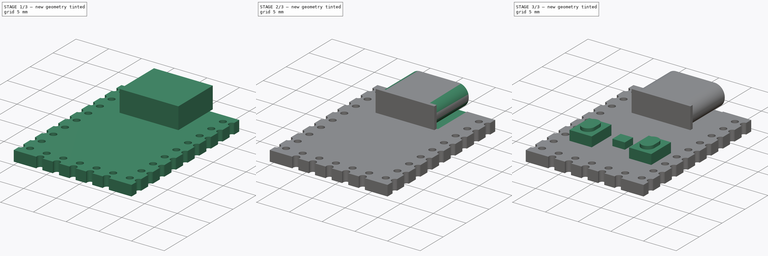
[diagram: build sequence overview — one tinted view per stage of 3, left to right]
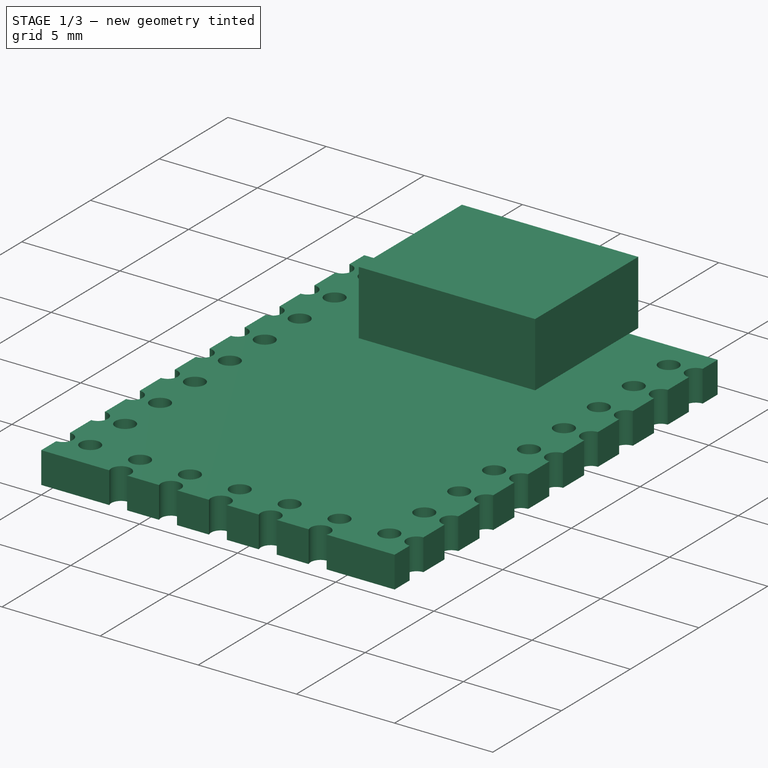
[diagram: stage 1 of 3 — iso view after this stage's code; geometry added in this stage tinted green]
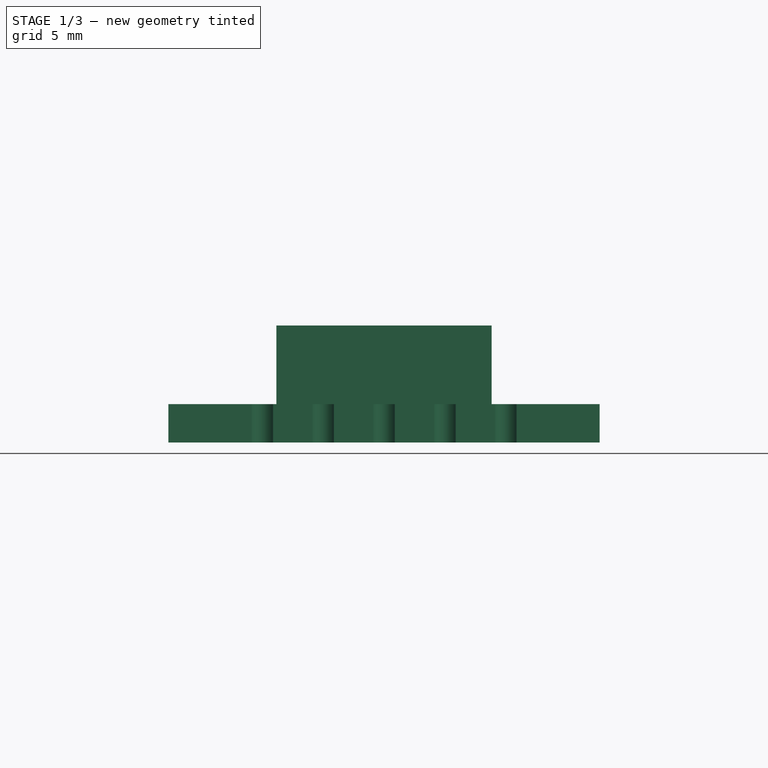
[diagram: stage 1 of 3 — front view after this stage's code; geometry added in this stage tinted green]
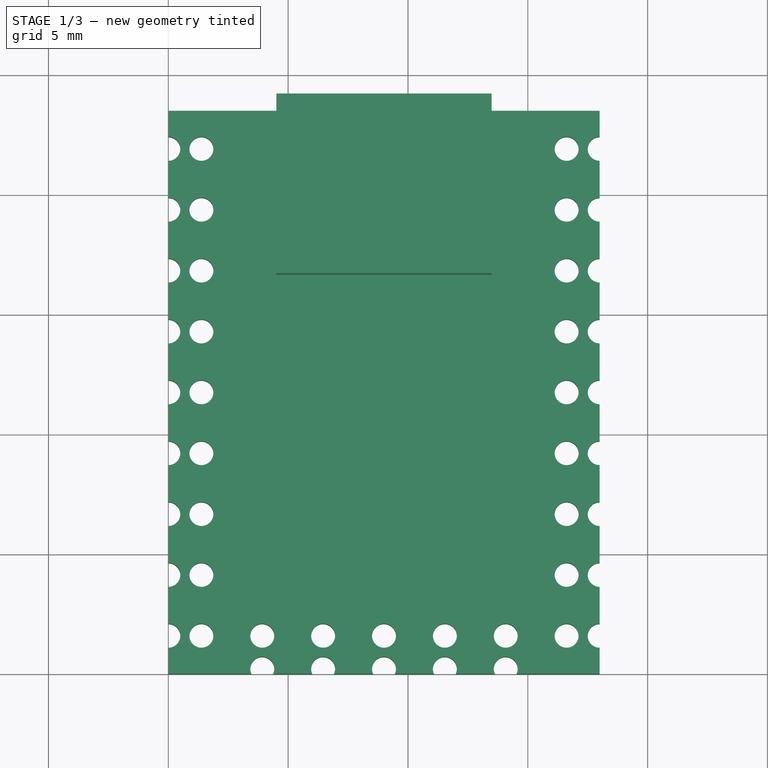
[diagram: stage 1 of 3 — top view after this stage's code; geometry added in this stage tinted green]
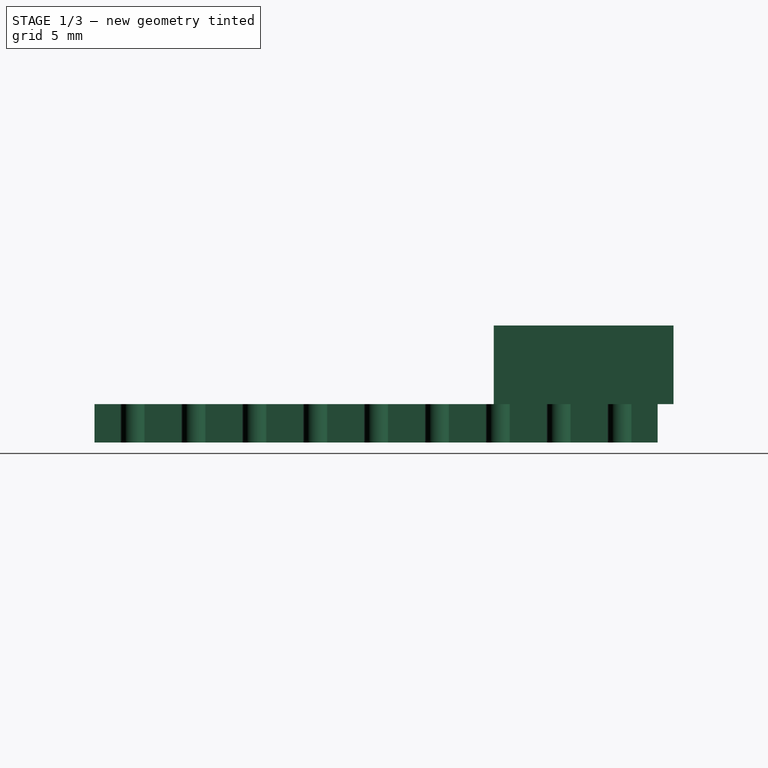
[diagram: stage 1 of 3 — right view after this stage's code; geometry added in this stage tinted green]
FCSTD DOCUMENT  (FreeCAD 1.0RUnknown)
Label: RP2350-Zero_mini
License: All rights reserved
objects: Sketcher::SketchObject×8, PartDesign::Pad×5, PartDesign::Pocket×3, Image::ImagePlane×1, PartDesign::Body×1
note: 41 computed .brp shape members not serialized (recipe doc carries the construction recipe); baked Part::Feature solids carry a one-line shape summary decoded from their .brp

FEATURE [Sketcher::SketchObject] Sketch
  ArcFitTolerance = 1e-06
  AttachmentSupport = -> [XY_Plane]
  FullyConstrained = true
  MakeInternals = false
  MapMode = 5
  sketch-geometry (55):
    g0: LineSegment StartX=0 StartY=0 StartZ=0 EndX=18 EndY=0 EndZ=0
    g1: LineSegment StartX=18 StartY=0 StartZ=0 EndX=18 EndY=23.5 EndZ=0
    g2: LineSegment StartX=18 StartY=23.5 StartZ=0 EndX=0 EndY=23.5 EndZ=0
    g3: LineSegment StartX=0 StartY=23.5 StartZ=0 EndX=0 EndY=0 EndZ=0
    g4: Circle CenterX=1.38 CenterY=21.91 CenterZ=0 NormalX=0 NormalY=0 NormalZ=1 AngleXU=0 Radius=0.5
    g5: Circle [constr] CenterX=0 CenterY=21.91 CenterZ=0 NormalX=0 NormalY=0 NormalZ=1 AngleXU=0 Radius=0.5
    g6: Circle CenterX=1.38 CenterY=19.37 CenterZ=0 NormalX=0 NormalY=0 NormalZ=1 AngleXU=0 Radius=0.5
    g7: Circle [constr] CenterX=0 CenterY=19.37 CenterZ=0 NormalX=0 NormalY=0 NormalZ=1 AngleXU=0 Radius=0.5
    g8: Circle CenterX=1.38 CenterY=16.83 CenterZ=0 NormalX=0 NormalY=0 NormalZ=1 AngleXU=0 Radius=0.5
    g9: Circle [constr] CenterX=0 CenterY=16.83 CenterZ=0 NormalX=0 NormalY=0 NormalZ=1 AngleXU=0 Radius=0.5
    g10: Circle CenterX=1.38 CenterY=14.29 CenterZ=0 NormalX=0 NormalY=0 NormalZ=1 AngleXU=0 Radius=0.5
    g11: Circle [constr] CenterX=0 CenterY=14.29 CenterZ=0 NormalX=0 NormalY=0 NormalZ=1 AngleXU=0 Radius=0.5
    g12: Circle CenterX=1.38 CenterY=11.75 CenterZ=0 NormalX=0 NormalY=0 NormalZ=1 AngleXU=0 Radius=0.5
    g13: Circle [constr] CenterX=0 CenterY=11.75 CenterZ=0 NormalX=0 NormalY=0 NormalZ=1 AngleXU=0 Radius=0.5
    g14: Circle CenterX=1.38 CenterY=9.21 CenterZ=0 NormalX=0 NormalY=0 NormalZ=1 AngleXU=0 Radius=0.5
    g15: Circle [constr] CenterX=0 CenterY=9.21 CenterZ=0 NormalX=0 NormalY=0 NormalZ=1 AngleXU=0 Radius=0.5
    g16: Circle CenterX=1.38 CenterY=6.67 CenterZ=0 NormalX=0 NormalY=0 NormalZ=1 AngleXU=0 Radius=0.5
    g17: Circle [constr] CenterX=0 CenterY=6.67 CenterZ=0 NormalX=0 NormalY=0 NormalZ=1 AngleXU=0 Radius=0.5
    g18: Circle CenterX=1.38 CenterY=4.13 CenterZ=0 NormalX=0 NormalY=0 NormalZ=1 AngleXU=0 Radius=0.5
    g19: Circle [constr] CenterX=0 CenterY=4.13 CenterZ=0 NormalX=0 NormalY=0 NormalZ=1 AngleXU=0 Radius=0.5
    g20: Circle CenterX=1.38 CenterY=1.59 CenterZ=0 NormalX=0 NormalY=0 NormalZ=1 AngleXU=0 Radius=0.5
    g21: Circle [constr] CenterX=0 CenterY=1.59 CenterZ=0 NormalX=0 NormalY=0 NormalZ=1 AngleXU=0 Radius=0.5
    g22: LineSegment [constr] StartX=4.67 StartY=24.33 StartZ=0 EndX=4.67 EndY=16.83 EndZ=0
    g23: LineSegment [constr] StartX=4.67 StartY=16.83 StartZ=0 EndX=13.33 EndY=16.83 EndZ=0
    g24: LineSegment [constr] StartX=13.33 StartY=16.83 StartZ=0 EndX=13.33 EndY=24.33 EndZ=0
    g25: LineSegment [constr] StartX=13.33 StartY=24.33 StartZ=0 EndX=4.67 EndY=24.33 EndZ=0
    g26: Circle [constr] CenterX=18 CenterY=21.91 CenterZ=0 NormalX=0 NormalY=0 NormalZ=1 AngleXU=0 Radius=0.5
    g27: Circle CenterX=16.62 CenterY=21.91 CenterZ=0 NormalX=0 NormalY=0 NormalZ=1 AngleXU=0 Radius=0.5
    g28: Circle [constr] CenterX=18 CenterY=19.37 CenterZ=0 NormalX=0 NormalY=0 NormalZ=1 AngleXU=0 Radius=0.5
    g29: Circle CenterX=16.62 CenterY=19.37 CenterZ=0 NormalX=0 NormalY=0 NormalZ=1 AngleXU=0 Radius=0.5
    g30: Circle [constr] CenterX=18 CenterY=16.83 CenterZ=0 NormalX=0 NormalY=0 NormalZ=1 AngleXU=0 Radius=0.5
    g31: Circle CenterX=16.62 CenterY=16.83 CenterZ=0 NormalX=0 NormalY=0 NormalZ=1 AngleXU=0 Radius=0.5
    g32: Circle [constr] CenterX=18 CenterY=14.29 CenterZ=0 NormalX=0 NormalY=0 NormalZ=1 AngleXU=0 Radius=0.5
    g33: Circle CenterX=16.62 CenterY=14.29 CenterZ=0 NormalX=0 NormalY=0 NormalZ=1 AngleXU=0 Radius=0.5
    g34: Circle [constr] CenterX=18 CenterY=11.75 CenterZ=0 NormalX=0 NormalY=0 NormalZ=1 AngleXU=0 Radius=0.5
    g35: Circle CenterX=16.62 CenterY=11.75 CenterZ=0 NormalX=0 NormalY=0 NormalZ=1 AngleXU=0 Radius=0.5
    g36: Circle [constr] CenterX=18 CenterY=9.21 CenterZ=0 NormalX=0 NormalY=0 NormalZ=1 AngleXU=0 Radius=0.5
    g37: Circle CenterX=16.62 CenterY=9.21 CenterZ=0 NormalX=0 NormalY=0 NormalZ=1 AngleXU=0 Radius=0.5
    g38: Circle [constr] CenterX=18 CenterY=6.67 CenterZ=0 NormalX=0 NormalY=0 NormalZ=1 AngleXU=0 Radius=0.5
    g39: Circle CenterX=16.62 CenterY=6.67 CenterZ=0 NormalX=0 NormalY=0 NormalZ=1 AngleXU=0 Radius=0.5
    g40: Circle [constr] CenterX=18 CenterY=4.13 CenterZ=0 NormalX=0 NormalY=0 NormalZ=1 AngleXU=0 Radius=0.5
    g41: Circle CenterX=16.62 CenterY=4.13 CenterZ=0 NormalX=0 NormalY=0 NormalZ=1 AngleXU=0 Radius=0.5
    g42: Circle [constr] CenterX=18 CenterY=1.59 CenterZ=0 NormalX=0 NormalY=0 NormalZ=1 AngleXU=0 Radius=0.5
    g43: Circle CenterX=16.62 CenterY=1.59 CenterZ=0 NormalX=0 NormalY=0 NormalZ=1 AngleXU=0 Radius=0.5
    g44: LineSegment [constr] StartX=16.62 StartY=23.5 StartZ=0 EndX=16.62 EndY=0 EndZ=0
    g45: Circle CenterX=14.08 CenterY=1.59 CenterZ=0 NormalX=0 NormalY=0 NormalZ=1 AngleXU=0 Radius=0.5
    g46: Circle [constr] CenterX=14.08 CenterY=0.21 CenterZ=0 NormalX=0 NormalY=0 NormalZ=1 AngleXU=0 Radius=0.5
    g47: Circle CenterX=11.54 CenterY=1.59 CenterZ=0 NormalX=0 NormalY=0 NormalZ=1 AngleXU=0 Radius=0.5
    g48: Circle [constr] CenterX=11.54 CenterY=0.21 CenterZ=0 NormalX=0 NormalY=0 NormalZ=1 AngleXU=0 Radius=0.5
    g49: Circle CenterX=9 CenterY=1.59 CenterZ=0 NormalX=0 NormalY=0 NormalZ=1 AngleXU=0 Radius=0.5
    g50: Circle [constr] CenterX=9 CenterY=0.21 CenterZ=0 NormalX=0 NormalY=0 NormalZ=1 AngleXU=0 Radius=0.5
    g51: Circle CenterX=6.46 CenterY=1.59 CenterZ=0 NormalX=0 NormalY=0 NormalZ=1 AngleXU=0 Radius=0.5
    g52: Circle [constr] CenterX=6.46 CenterY=0.21 CenterZ=0 NormalX=0 NormalY=0 NormalZ=1 AngleXU=0 Radius=0.5
    g53: Circle CenterX=3.92 CenterY=1.59 CenterZ=0 NormalX=0 NormalY=0 NormalZ=1 AngleXU=0 Radius=0.5
    g54: Circle [constr] CenterX=3.92 CenterY=0.21 CenterZ=0 NormalX=0 NormalY=0 NormalZ=1 AngleXU=0 Radius=0.5
  constraints (165):
    c: Coincident(g0,g1)
    c: Coincident(g1,g2)
    c: Coincident(g2,g3)
    c: Coincident(g3,g0)
    c: Horizontal(g0)
    c: Horizontal(g2)
    c: Vertical(g1)
    c: Vertical(g3)
    c: Distance(g1,g3) = 18
    c: Distance(g0,g2) = 23.5
    c: Coincident(g0,g-1)
    c: DistanceY(g4,g2) = 1.59
    c: DistanceX(g2,g4) = 1.38
    c: Diameter(g4) = 1
    c: PointOnObject(g5,g3)
    c: Equal(g4,g5)
    c: Horizontal(g5,g4)
    c: Equal(g4,g6)
    c: Equal(g4,g8)
    c: Equal(g4,g10)
    c: Equal(g4,g12)
    c: Equal(g4,g14)
    c: Equal(g4,g16)
    c: Equal(g4,g18)
    c: Equal(g4,g20)
    c: Equal(g6,g7)
    c: Equal(g8,g9)
    c: Equal(g10,g11)
    c: Equal(g12,g13)
    c: Equal(g14,g15)
    c: Equal(g16,g17)
    c: Equal(g18,g19)
    c: Equal(g20,g21)
    c: Horizontal(g7,g6)
    c: Horizontal(g9,g8)
    c: Horizontal(g11,g10)
    c: Horizontal(g13,g12)
    c: Horizontal(g15,g14)
    c: Horizontal(g17,g16)
    c: Horizontal(g19,g18)
    c: Horizontal(g21,g20)
    c: Vertical(g6,g4)
    c: Vertical(g8,g6)
    c: Vertical(g10,g8)
    c: Vertical(g12,g10)
    c: Vertical(g14,g12)
    c: Vertical(g16,g14)
    c: Vertical(g18,g16)
    c: Vertical(g20,g18)
    c: Vertical(g9,g11)
    c: Vertical(g11,g13)
    c: Vertical(g13,g15)
    c: Vertical(g15,g17)
    c: Vertical(g19,g17)
    c: Vertical(g19,g21)
    c: Vertical(g7,g5)
    c: DistanceY(g7,g5) = 2.54
    c: DistanceY(g9,g7) = 2.54
    c: DistanceY(g11,g9) = 2.54
    c: DistanceY(g13,g11) = 2.54
    c: DistanceY(g15,g13) = 2.54
    c: DistanceY(g17,g15) = 2.54
    c: DistanceY(g19,g17) = 2.54
    c: DistanceY(g21,g19) = 2.54
    c: Vertical(g9,g7)
    c: Coincident(g22,g23)
    c: Coincident(g23,g24)
    c: Coincident(g24,g25)
    c: Coincident(g25,g22)
    c: Vertical(g22)
    c: Vertical(g24)
    c: Horizontal(g23)
    c: Horizontal(g25)
    c: DistanceX(g24,g1) = 4.67
    c: DistanceX(g2,g22) = 4.67
    c: Horizontal(g8,g22)
    c: DistanceY(g22,g22) = 7.5
    c: Vertical(g44)
    c: Diameter(g26) = 1
    c: PointOnObject(g27,g44)
    c: Equal(g26,g27)
    c: Horizontal(g27,g26)
    c: Equal(g26,g28)
    c: Equal(g26,g30)
    c: Equal(g26,g32)
    c: Equal(g26,g34)
    c: Equal(g26,g36)
    c: Equal(g26,g38)
    c: Equal(g26,g40)
    c: Equal(g26,g42)
    c: Equal(g28,g29)
    c: Equal(g30,g31)
    c: Equal(g32,g33)
    c: Equal(g34,g35)
    c: Equal(g36,g37)
    c: Equal(g38,g39)
    c: Equal(g40,g41)
    c: Equal(g42,g43)
    c: Horizontal(g29,g28)
    c: Horizontal(g31,g30)
    c: Horizontal(g33,g32)
    c: Horizontal(g35,g34)
    c: Horizontal(g37,g36)
    c: Horizontal(g39,g38)
    c: Horizontal(g41,g40)
    c: Horizontal(g43,g42)
    c: Vertical(g28,g26)
    c: Vertical(g30,g28)
    c: Vertical(g32,g30)
    c: Vertical(g34,g32)
    c: Vertical(g36,g34)
    c: Vertical(g38,g36)
    c: Vertical(g40,g38)
    c: Vertical(g42,g40)
    c: Vertical(g31,g33)
    c: Vertical(g33,g35)
    c: Vertical(g35,g37)
    c: Vertical(g37,g39)
    c: Vertical(g41,g39)
    c: Vertical(g41,g43)
    c: Vertical(g29,g27)
    c: DistanceY(g29,g27) = 2.54
    c: DistanceY(g31,g29) = 2.54
    c: DistanceY(g33,g31) = 2.54
    c: DistanceY(g35,g33) = 2.54
    c: DistanceY(g37,g35) = 2.54
    c: DistanceY(g39,g37) = 2.54
    c: DistanceY(g41,g39) = 2.54
    c: DistanceY(g43,g41) = 2.54
    c: Vertical(g31,g29)
    c: Horizontal(g30,g22)
    c: PointOnObject(g26,g1)
    c: DistanceX(g27,g26) = 1.38
    c: PointOnObject(g44,g2)
    c: PointOnObject(g44,g0)
    c: Equal(g45,g20)
    c: DistanceX(g45,g0) = 3.92
    c: Horizontal(g45,g43)
    c: Equal(g46,g45)
    c: Vertical(g45,g46)
    c: DistanceY(g46,g45) = 1.38
    c: Horizontal(g47,g43)
    c: Horizontal(g49,g43)
    c: Horizontal(g51,g43)
    c: Horizontal(g53,g43)
    c: Equal(g48,g47)
    c: Equal(g50,g49)
    c: Equal(g52,g51)
    c: Equal(g54,g53)
    c: Vertical(g47,g48)
    c: Vertical(g49,g50)
    c: Vertical(g51,g52)
    c: Vertical(g53,g54)
    c: DistanceY(g48,g47) = 1.38
    c: DistanceY(g50,g49) = 1.38
    c: DistanceY(g52,g51) = 1.38
    c: DistanceY(g54,g53) = 1.38
    c: Equal(g45,g47)
    c: Equal(g47,g49)
    c: Equal(g49,g51)
    c: Equal(g51,g53)
    c: DistanceX(g48,g46) = 2.54
    c: DistanceX(g50,g48) = 2.54
    c: DistanceX(g52,g50) = 2.54
    c: DistanceX(g54,g52) = 2.54
FEATURE [Image::ImagePlane] Screenshot_20260202_135313
  Placement = pos=(12,11,0) rot=(0,0,1;0rad)
  XSize = 40.3515
  YSize = 38.0782
FEATURE [PartDesign::Pad] Pad
  Direction = (0,0,1)
  Length = 1.6
  Length2 = 10
  Profile = -> Sketch
  ReferenceAxis = -> Sketch [N_Axis]
  Refine = true
  Suppressed = false
  Type = 0
FEATURE [Sketcher::SketchObject] Sketch001
  ArcFitTolerance = 1e-06
  AttachmentSupport = -> [Pad]
  ExternalGeometry = -> [Pad]
  FullyConstrained = true
  MakeInternals = false
  MapMode = 5
  Placement = pos=(0,0,1.6) rot=(0,0,1;0rad)
  sketch-geometry (23):
    g0: Circle CenterX=0 CenterY=21.91 CenterZ=0 NormalX=0 NormalY=0 NormalZ=1 AngleXU=0 Radius=0.5
    g1: Circle CenterX=0 CenterY=19.37 CenterZ=0 NormalX=0 NormalY=0 NormalZ=1 AngleXU=0 Radius=0.5
    g2: Circle CenterX=0 CenterY=16.83 CenterZ=0 NormalX=0 NormalY=0 NormalZ=1 AngleXU=0 Radius=0.5
    g3: Circle CenterX=0 CenterY=14.29 CenterZ=0 NormalX=0 NormalY=0 NormalZ=1 AngleXU=0 Radius=0.5
    g4: Circle CenterX=0 CenterY=11.75 CenterZ=0 NormalX=0 NormalY=0 NormalZ=1 AngleXU=0 Radius=0.5
    g5: Circle CenterX=0 CenterY=9.21 CenterZ=0 NormalX=0 NormalY=0 NormalZ=1 AngleXU=0 Radius=0.5
    g6: Circle CenterX=0 CenterY=6.67 CenterZ=0 NormalX=0 NormalY=0 NormalZ=1 AngleXU=0 Radius=0.5
    g7: Circle CenterX=0 CenterY=4.13 CenterZ=0 NormalX=0 NormalY=0 NormalZ=1 AngleXU=0 Radius=0.5
    g8: Circle CenterX=0 CenterY=1.59 CenterZ=0 NormalX=0 NormalY=0 NormalZ=1 AngleXU=0 Radius=0.5
    g9: Circle CenterX=18 CenterY=21.91 CenterZ=0 NormalX=0 NormalY=0 NormalZ=1 AngleXU=0 Radius=0.5
    g10: Circle CenterX=18 CenterY=19.37 CenterZ=0 NormalX=0 NormalY=0 NormalZ=1 AngleXU=0 Radius=0.5
    g11: Circle CenterX=18 CenterY=16.83 CenterZ=0 NormalX=0 NormalY=0 NormalZ=1 AngleXU=0 Radius=0.5
    g12: Circle CenterX=18 CenterY=14.29 CenterZ=0 NormalX=0 NormalY=0 NormalZ=1 AngleXU=0 Radius=0.5
    g13: Circle CenterX=18 CenterY=11.75 CenterZ=0 NormalX=0 NormalY=0 NormalZ=1 AngleXU=0 Radius=0.5
    g14: Circle CenterX=18 CenterY=9.21 CenterZ=0 NormalX=0 NormalY=0 NormalZ=1 AngleXU=0 Radius=0.5
    g15: Circle CenterX=18 CenterY=6.67 CenterZ=0 NormalX=0 NormalY=0 NormalZ=1 AngleXU=0 Radius=0.5
    g16: Circle CenterX=18 CenterY=4.13 CenterZ=0 NormalX=0 NormalY=0 NormalZ=1 AngleXU=0 Radius=0.5
    g17: Circle CenterX=18 CenterY=1.59 CenterZ=0 NormalX=0 NormalY=0 NormalZ=1 AngleXU=0 Radius=0.5
    g18: Circle CenterX=3.92 CenterY=0.21 CenterZ=0 NormalX=0 NormalY=0 NormalZ=1 AngleXU=0 Radius=0.5
    g19: Circle CenterX=6.46 CenterY=0.21 CenterZ=0 NormalX=0 NormalY=0 NormalZ=1 AngleXU=0 Radius=0.5
    g20: Circle CenterX=9 CenterY=0.21 CenterZ=0 NormalX=0 NormalY=0 NormalZ=1 AngleXU=0 Radius=0.5
    g21: Circle CenterX=11.54 CenterY=0.21 CenterZ=0 NormalX=0 NormalY=0 NormalZ=1 AngleXU=0 Radius=0.5
    g22: Circle CenterX=14.08 CenterY=0.21 CenterZ=0 NormalX=0 NormalY=0 NormalZ=1 AngleXU=0 Radius=0.5
  constraints (69):
    c: PointOnObject(g0,g-2)
    c: Equal(g-3,g0)
    c: Horizontal(g0,g-3)
    c: PointOnObject(g1,g-2)
    c: PointOnObject(g2,g-2)
    c: PointOnObject(g3,g-2)
    c: PointOnObject(g4,g-2)
    c: PointOnObject(g5,g-2)
    c: PointOnObject(g6,g-2)
    c: PointOnObject(g7,g-2)
    c: PointOnObject(g8,g-2)
    c: Equal(g0,g1)
    c: Equal(g1,g2)
    c: Equal(g2,g3)
    c: Equal(g3,g4)
    c: Equal(g4,g5)
    c: Equal(g5,g6)
    c: Equal(g6,g7)
    c: Equal(g7,g8)
    c: Horizontal(g1,g-4)
    c: Horizontal(g2,g-5)
    c: Horizontal(g-6,g3)
    c: Horizontal(g4,g-7)
    c: Horizontal(g5,g-8)
    c: Horizontal(g6,g-10)
    c: Horizontal(g7,g-9)
    c: Horizontal(g8,g-11)
    c: Horizontal(g9,g-3)
    c: Equal(g9,g10)
    c: Equal(g10,g11)
    c: Equal(g11,g12)
    c: Equal(g12,g13)
    c: Equal(g13,g14)
    c: Equal(g14,g15)
    c: Equal(g15,g16)
    c: Equal(g16,g17)
    c: Horizontal(g10,g-4)
    c: Horizontal(g11,g-5)
    c: Horizontal(g13,g-7)
    c: Horizontal(g14,g-8)
    c: Horizontal(g15,g-10)
    c: Horizontal(g16,g-9)
    c: Horizontal(g17,g-11)
    c: Equal(g9,g0)
    c: PointOnObject(g9,g-12)
    c: Vertical(g9,g10)
    c: Vertical(g10,g11)
    c: Vertical(g11,g12)
    c: Vertical(g12,g13)
    c: Vertical(g13,g14)
    c: Vertical(g14,g15)
    c: Vertical(g15,g16)
    c: Vertical(g16,g17)
    c: Horizontal(g12,g-6)
    c: DistanceY(g18,g-13) = 1.38
    c: Equal(g-13,g18)
    c: Vertical(g18,g-13)
    c: Equal(g18,g19)
    c: Equal(g19,g20)
    c: Equal(g20,g21)
    c: Equal(g21,g22)
    c: Vertical(g-14,g19)
    c: Vertical(g-15,g20)
    c: Vertical(g-16,g21)
    c: Vertical(g-17,g22)
    c: Horizontal(g18,g19)
    c: Horizontal(g19,g20)
    c: Horizontal(g20,g21)
    c: Horizontal(g21,g22)
FEATURE [PartDesign::Pocket] Pocket
  BaseFeature = -> Pad
  Direction = (0,0,-1)
  Length = 5
  Length2 = 5
  Profile = -> Sketch001
  ReferenceAxis = -> Sketch001 [N_Axis]
  Refine = true
  Suppressed = false
  Type = 0
FEATURE [Sketcher::SketchObject] Sketch002
  ArcFitTolerance = 1e-06
  AttachmentSupport = -> [Pocket]
  ExternalGeometry = -> [Pocket]
  FullyConstrained = true
  MakeInternals = false
  MapMode = 5
  Placement = pos=(0,0,1.6) rot=(0,0,1;0rad)
  sketch-geometry (6):
    g0: LineSegment StartX=4.51 StartY=24.16 StartZ=0 EndX=4.51 EndY=16.66 EndZ=0
    g1: LineSegment StartX=4.51 StartY=16.66 StartZ=0 EndX=13.49 EndY=16.66 EndZ=0
    g2: LineSegment StartX=13.49 StartY=16.66 StartZ=0 EndX=13.49 EndY=24.16 EndZ=0
    g3: LineSegment StartX=13.49 StartY=24.16 StartZ=0 EndX=4.51 EndY=24.16 EndZ=0
    g4: GeomPoint X=9 Y=20.41 Z=0
    g5: GeomPoint X=9 Y=23.5 Z=0
  constraints (14):
    c: Coincident(g0,g1)
    c: Coincident(g1,g2)
    c: Coincident(g2,g3)
    c: Coincident(g3,g0)
    c: Vertical(g0)
    c: Vertical(g2)
    c: Horizontal(g1)
    c: Horizontal(g3)
    c: Distance(g0,g2) = 8.98
    c: Distance(g1,g3) = 7.5
    c: DistanceY(g-1,g0) = 16.66
    c: Symmetric(g0,g2,g4)
    c: Symmetric(g-3,g-3,g5)
    c: Vertical(g5,g4)
FEATURE [PartDesign::Pad] Pad001
  BaseFeature = -> Pocket
  Direction = (0,0,1)
  Length = 3.28
  Length2 = 10
  Profile = -> Sketch002
  ReferenceAxis = -> Sketch002 [N_Axis]
  Refine = true
  Suppressed = false
  Type = 0
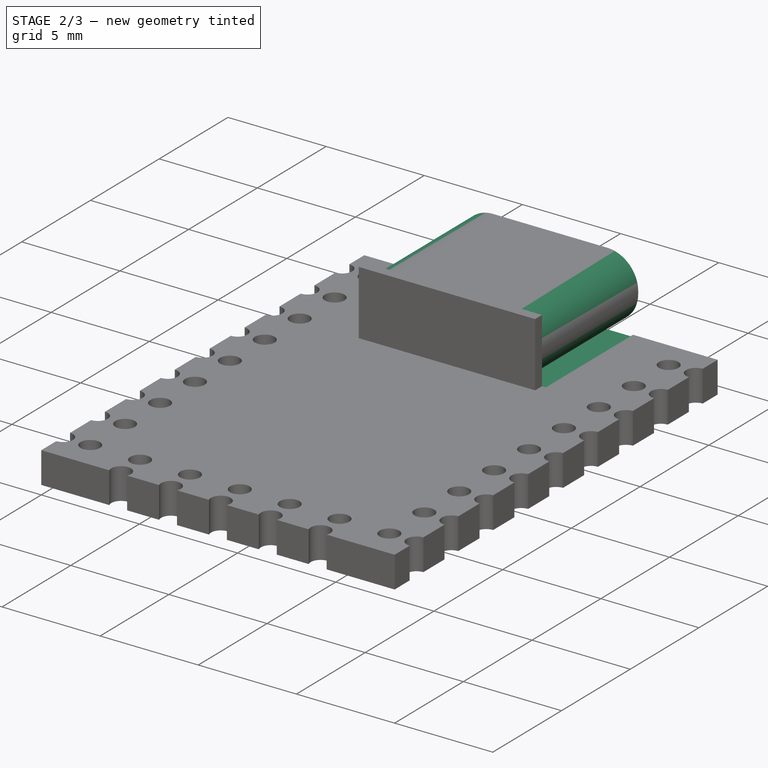
[diagram: stage 2 of 3 — iso view after this stage's code; geometry added in this stage tinted green]
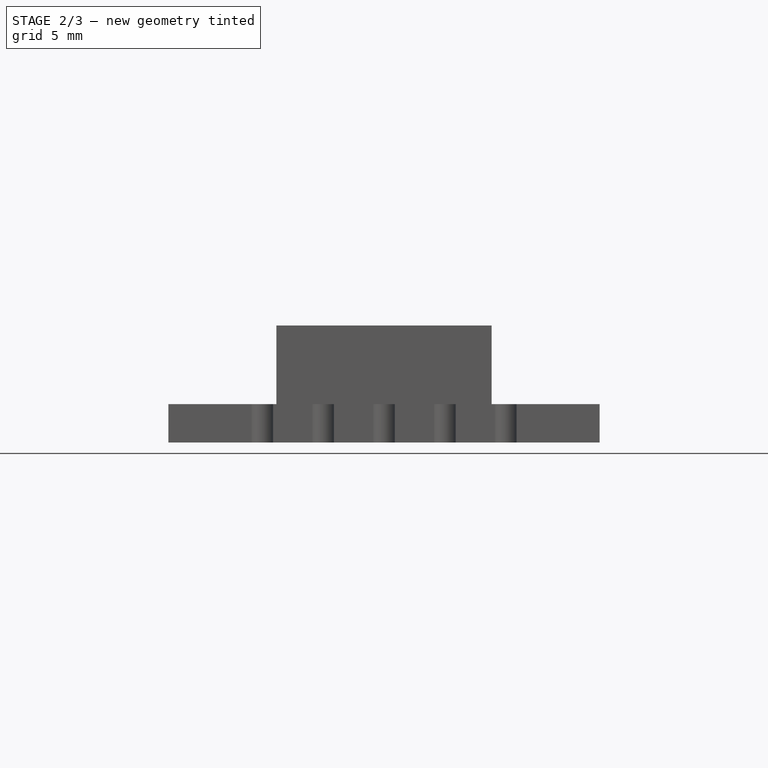
[diagram: stage 2 of 3 — front view after this stage's code; geometry added in this stage tinted green]
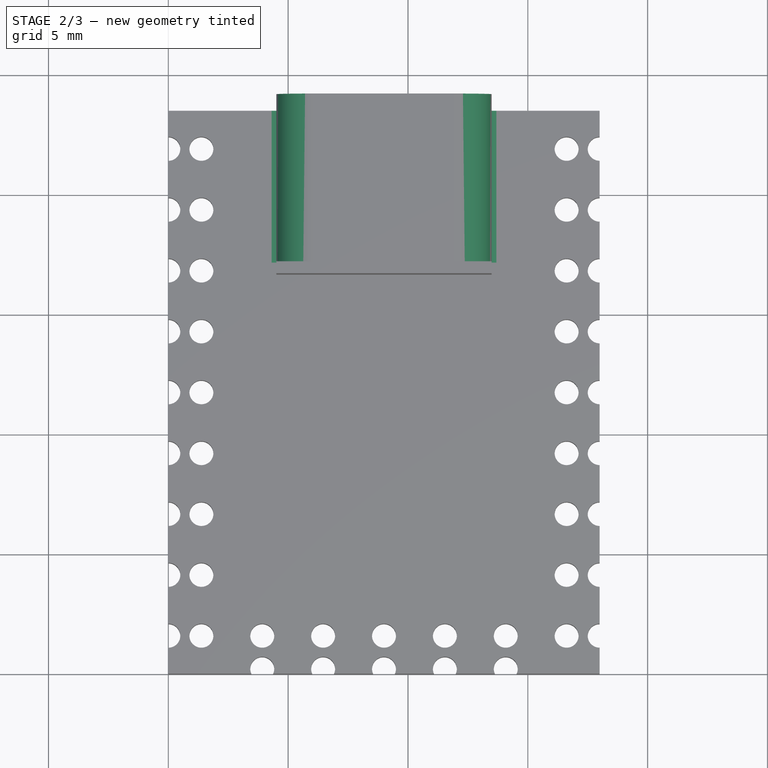
[diagram: stage 2 of 3 — top view after this stage's code; geometry added in this stage tinted green]
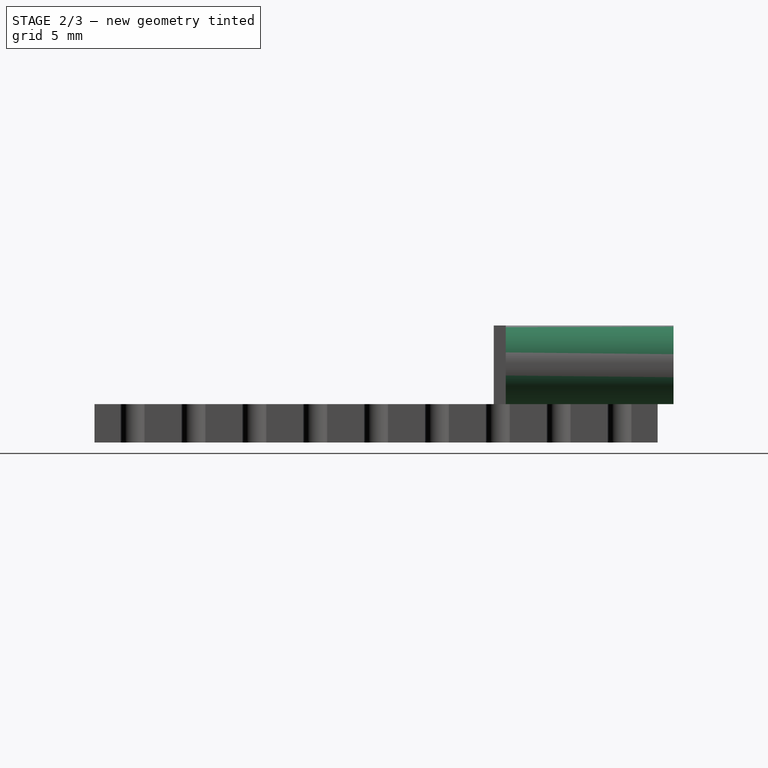
[diagram: stage 2 of 3 — right view after this stage's code; geometry added in this stage tinted green]
FEATURE [Sketcher::SketchObject] Sketch003
  ArcFitTolerance = 1e-06
  AttachmentSupport = -> [Pad001]
  ExternalGeometry = -> [Pad001]
  FullyConstrained = true
  MakeInternals = false
  MapMode = 5
  Placement = pos=(0,24.16,0) rot=(0,0.707107,0.707107;3.14159rad)
  sketch-geometry (14):
    g0: LineSegment StartX=-11.91 StartY=1.6 StartZ=0 EndX=-6.09 EndY=1.6 EndZ=0
    g1: LineSegment StartX=-4.51 StartY=3.18 StartZ=0 EndX=-4.51 EndY=3.3 EndZ=0
    g2: LineSegment StartX=-6.09 StartY=4.88 StartZ=0 EndX=-11.91 EndY=4.88 EndZ=0
    g3: LineSegment StartX=-13.49 StartY=3.3 StartZ=0 EndX=-13.49 EndY=3.18 EndZ=0
    g4: ArcOfCircle CenterX=-11.91 CenterY=3.18 CenterZ=0 NormalX=0 NormalY=0 NormalZ=1 AngleXU=0 Radius=1.58 StartAngle=3.14159 EndAngle=4.71239
    g5: ArcOfCircle CenterX=-6.09 CenterY=3.18 CenterZ=0 NormalX=0 NormalY=0 NormalZ=1 AngleXU=0 Radius=1.58 StartAngle=4.71239 EndAngle=6.28319
    g6: ArcOfCircle CenterX=-6.09 CenterY=3.3 CenterZ=0 NormalX=0 NormalY=0 NormalZ=1 AngleXU=0 Radius=1.58 StartAngle=0 EndAngle=1.5708
    g7: ArcOfCircle CenterX=-11.91 CenterY=3.3 CenterZ=0 NormalX=0 NormalY=0 NormalZ=1 AngleXU=0 Radius=1.58 StartAngle=1.5708 EndAngle=3.14159
    g8: GeomPoint [constr] X=-13.49 Y=1.6 Z=0
    g9: GeomPoint [constr] X=-4.51 Y=4.88 Z=0
    g10: LineSegment StartX=-13.69 StartY=5.88 StartZ=0 EndX=-13.69 EndY=1.5 EndZ=0
    g11: LineSegment StartX=-13.69 StartY=1.5 StartZ=0 EndX=-4.31 EndY=1.5 EndZ=0
    g12: LineSegment StartX=-4.31 StartY=1.5 StartZ=0 EndX=-4.31 EndY=5.88 EndZ=0
    g13: LineSegment StartX=-4.31 StartY=5.88 StartZ=0 EndX=-13.69 EndY=5.88 EndZ=0
  constraints (36):
    c: Tangent(g0,g4) = -1.5708
    c: Tangent(g0,g5) = -1.5708
    c: Tangent(g1,g5) = -1.5708
    c: Tangent(g1,g6) = -1.5708
    c: Tangent(g2,g6) = -1.5708
    c: Tangent(g2,g7) = -1.5708
    c: Tangent(g3,g7) = -1.5708
    c: Tangent(g3,g4) = -1.5708
    c: Horizontal(g0)
    c: Horizontal(g2)
    c: Vertical(g1)
    c: Vertical(g3)
    c: Equal(g4,g5)
    c: Equal(g5,g6)
    c: Equal(g6,g7)
    c: PointOnObject(g8,g0)
    c: PointOnObject(g8,g3)
    c: PointOnObject(g9,g1)
    c: PointOnObject(g9,g2)
    c: Radius(g5) = 1.58
    c: PointOnObject(g2,g-3)
    c: PointOnObject(g0,g-4)
    c: Vertical(g1,g-3)
    c: Vertical(g3,g-3)
    c: Coincident(g10,g11)
    c: Coincident(g11,g12)
    c: Coincident(g12,g13)
    c: Coincident(g13,g10)
    c: Vertical(g10)
    c: Vertical(g12)
    c: Horizontal(g11)
    c: Horizontal(g13)
    c: DistanceY(g-3,g10) = 1
    c: DistanceX(g10,g-3) = 0.2
    c: DistanceX(g9,g12) = 0.2
    c: DistanceY(g10,g8) = 0.1
FEATURE [PartDesign::Pocket] Pocket001
  BaseFeature = -> Pad001
  Direction = (0,-1,2e-16)
  Length = 7
  Length2 = 5
  Profile = -> Sketch003
  ReferenceAxis = -> Sketch003 [N_Axis]
  Refine = true
  Suppressed = false
  Type = 0
FEATURE [Sketcher::SketchObject] Sketch004
  ArcFitTolerance = 1e-06
  AttachmentSupport = -> [Pocket001]
  ExternalGeometry = -> [Pocket001]
  FullyConstrained = true
  MakeInternals = false
  MapMode = 5
  Placement = pos=(0,24.16,0) rot=(0,0.707107,0.707107;3.14159rad)
  sketch-geometry (15):
    g0: LineSegment StartX=-12.345 StartY=3.84 StartZ=0 EndX=-12.345 EndY=2.64 EndZ=0
    g1: LineSegment StartX=-12.345 StartY=2.64 StartZ=0 EndX=-5.655 EndY=2.64 EndZ=0
    g2: LineSegment StartX=-5.655 StartY=2.64 StartZ=0 EndX=-5.655 EndY=3.84 EndZ=0
    g3: LineSegment StartX=-5.655 StartY=3.84 StartZ=0 EndX=-12.345 EndY=3.84 EndZ=0
    g4: GeomPoint X=-9 Y=3.24 Z=0
    g5: LineSegment StartX=-12.04 StartY=1.85 StartZ=0 EndX=-5.96 EndY=1.85 EndZ=0
    g6: LineSegment StartX=-4.76 StartY=3.05 StartZ=0 EndX=-4.76 EndY=3.43 EndZ=0
    g7: LineSegment StartX=-5.96 StartY=4.63 StartZ=0 EndX=-12.04 EndY=4.63 EndZ=0
    g8: LineSegment StartX=-13.24 StartY=3.43 StartZ=0 EndX=-13.24 EndY=3.05 EndZ=0
    g9: ArcOfCircle CenterX=-12.04 CenterY=3.05 CenterZ=0 NormalX=0 NormalY=0 NormalZ=1 AngleXU=0 Radius=1.2 StartAngle=3.14159 EndAngle=4.71239
    g10: ArcOfCircle CenterX=-5.96 CenterY=3.05 CenterZ=0 NormalX=0 NormalY=0 NormalZ=1 AngleXU=0 Radius=1.2 StartAngle=4.71239 EndAngle=6.28319
    g11: ArcOfCircle CenterX=-5.96 CenterY=3.43 CenterZ=0 NormalX=0 NormalY=0 NormalZ=1 AngleXU=0 Radius=1.2 StartAngle=0 EndAngle=1.5708
    g12: ArcOfCircle CenterX=-12.04 CenterY=3.43 CenterZ=0 NormalX=0 NormalY=0 NormalZ=1 AngleXU=0 Radius=1.2 StartAngle=1.5708 EndAngle=3.14159
    g13: GeomPoint [constr] X=-13.24 Y=1.85 Z=0
    g14: GeomPoint [constr] X=-4.76 Y=4.63 Z=0
  constraints (36):
    c: Coincident(g0,g1)
    c: Coincident(g1,g2)
    c: Coincident(g2,g3)
    c: Coincident(g3,g0)
    c: Vertical(g0)
    c: Vertical(g2)
    c: Horizontal(g1)
    c: Horizontal(g3)
    c: DistanceY(g0,g0) = 1.2
    c: DistanceX(g3,g3) = 6.69
    c: Symmetric(g-4,g-3,g4)
    c: Symmetric(g0,g2,g4)
    c: Tangent(g5,g9) = -1.5708
    c: Tangent(g5,g10) = -1.5708
    c: Tangent(g6,g10) = -1.5708
    c: Tangent(g6,g11) = -1.5708
    c: Tangent(g7,g11) = -1.5708
    c: Tangent(g7,g12) = -1.5708
    c: Tangent(g8,g12) = -1.5708
    c: Tangent(g8,g9) = -1.5708
    c: Horizontal(g5)
    c: Horizontal(g7)
    c: Vertical(g6)
    c: Vertical(g8)
    c: Equal(g9,g10)
    c: Equal(g10,g11)
    c: Equal(g11,g12)
    c: PointOnObject(g13,g5)
    c: PointOnObject(g13,g8)
    c: PointOnObject(g14,g6)
    c: PointOnObject(g14,g7)
    c: Radius(g10) = 1.2
    c: DistanceY(g7,g-3) = 0.25
    c: DistanceY(g-4,g5) = 0.25
    c: DistanceX(g6,g-3) = 0.25
    c: DistanceX(g-4,g8) = 0.25
FEATURE [PartDesign::Pocket] Pocket002
  BaseFeature = -> Pocket001
  Direction = (0,-1,2e-16)
  Length = 6
  Length2 = 5
  Profile = -> Sketch004
  ReferenceAxis = -> Sketch004 [N_Axis]
  Refine = true
  Suppressed = false
  Type = 0
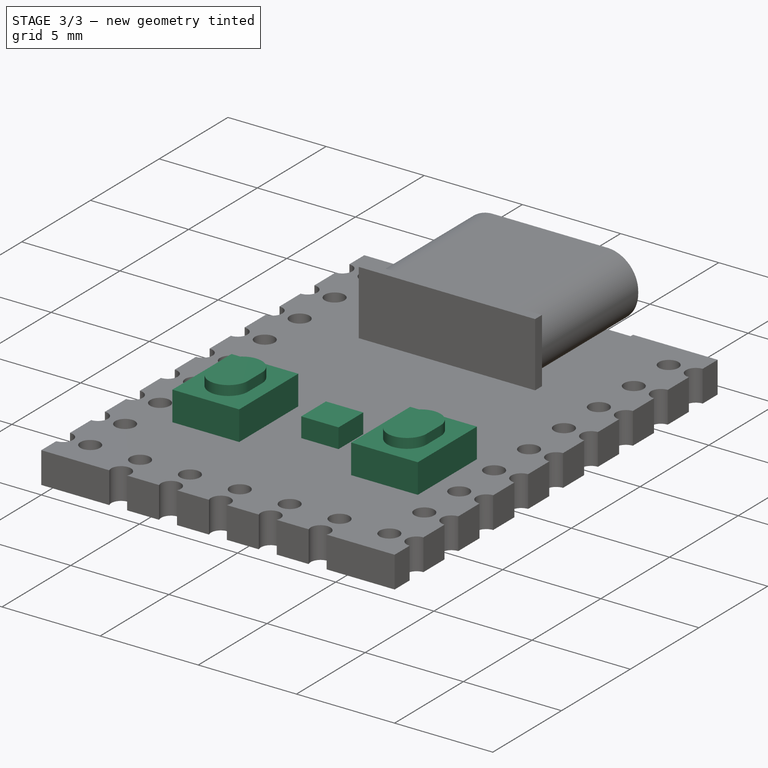
[diagram: stage 3 of 3 — iso view after this stage's code; geometry added in this stage tinted green]
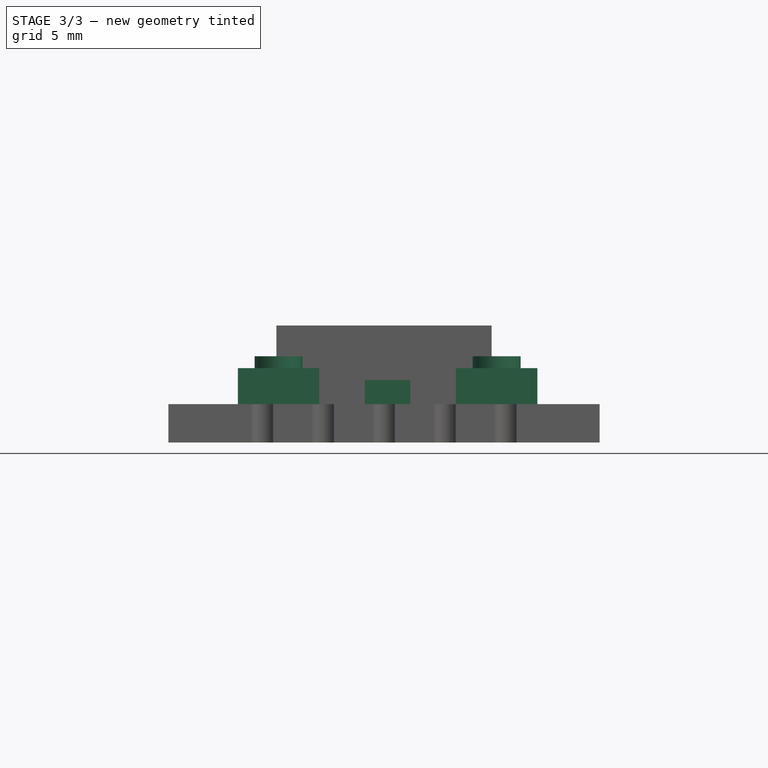
[diagram: stage 3 of 3 — front view after this stage's code; geometry added in this stage tinted green]
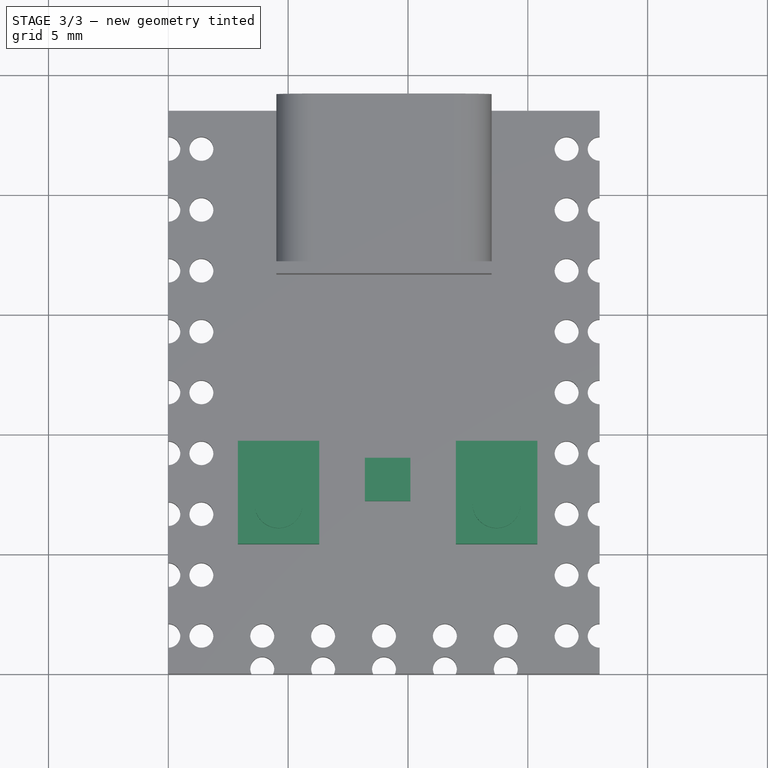
[diagram: stage 3 of 3 — top view after this stage's code; geometry added in this stage tinted green]
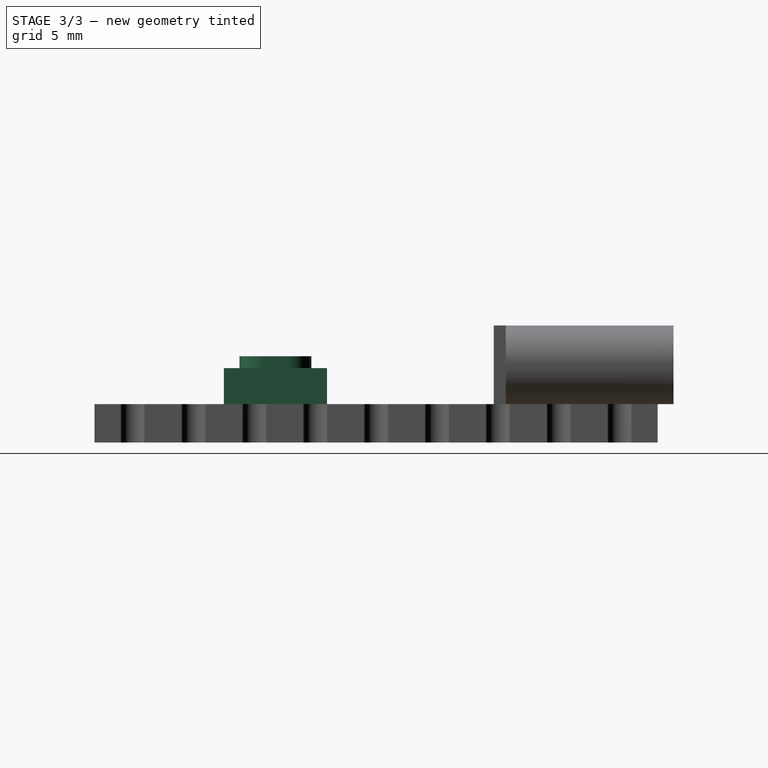
[diagram: stage 3 of 3 — right view after this stage's code; geometry added in this stage tinted green]
FEATURE [Sketcher::SketchObject] Sketch005
  ArcFitTolerance = 1e-06
  AttachmentSupport = -> [Pocket002]
  ExternalGeometry = -> [Pocket002]
  FullyConstrained = true
  MakeInternals = false
  MapMode = 5
  Placement = pos=(0,0,1.6) rot=(0,0,1;0rad)
  sketch-geometry (8):
    g0: LineSegment StartX=2.9 StartY=9.7 StartZ=0 EndX=2.9 EndY=5.4 EndZ=0
    g1: LineSegment StartX=2.9 StartY=5.4 StartZ=0 EndX=6.3 EndY=5.4 EndZ=0
    g2: LineSegment StartX=6.3 StartY=5.4 StartZ=0 EndX=6.3 EndY=9.7 EndZ=0
    g3: LineSegment StartX=6.3 StartY=9.7 StartZ=0 EndX=2.9 EndY=9.7 EndZ=0
    g4: LineSegment StartX=12 StartY=9.7 StartZ=0 EndX=12 EndY=5.4 EndZ=0
    g5: LineSegment StartX=12 StartY=5.4 StartZ=0 EndX=15.4 EndY=5.4 EndZ=0
    g6: LineSegment StartX=15.4 StartY=5.4 StartZ=0 EndX=15.4 EndY=9.7 EndZ=0
    g7: LineSegment StartX=15.4 StartY=9.7 StartZ=0 EndX=12 EndY=9.7 EndZ=0
  constraints (24):
    c: Coincident(g0,g1)
    c: Coincident(g1,g2)
    c: Coincident(g2,g3)
    c: Coincident(g3,g0)
    c: Vertical(g0)
    c: Vertical(g2)
    c: Horizontal(g1)
    c: Horizontal(g3)
    c: Coincident(g4,g5)
    c: Coincident(g5,g6)
    c: Coincident(g6,g7)
    c: Coincident(g7,g4)
    c: Vertical(g4)
    c: Vertical(g6)
    c: Horizontal(g5)
    c: Horizontal(g7)
    c: Equal(g3,g7)
    c: Equal(g4,g2)
    c: DistanceY(g6,g6) = 4.3
    c: DistanceX(g7,g7) = 3.4
    c: DistanceY(g-1,g0) = 5.4
    c: DistanceX(g-1,g0) = 2.9
    c: DistanceX(g5,g-3) = 2.6
    c: Horizontal(g4,g1)
FEATURE [PartDesign::Pad] Pad002
  BaseFeature = -> Pocket002
  Direction = (0,0,1)
  Length = 1.5
  Length2 = 10
  Profile = -> Sketch005
  ReferenceAxis = -> Sketch005 [N_Axis]
  Refine = true
  Suppressed = false
  Type = 0
FEATURE [Sketcher::SketchObject] Sketch006
  ArcFitTolerance = 1e-06
  AttachmentSupport = -> [Pad002]
  FullyConstrained = true
  MakeInternals = false
  MapMode = 5
  Placement = pos=(0,0,1.6) rot=(0,0,1;0rad)
  sketch-geometry (4):
    g0: LineSegment StartX=8.2 StartY=9 StartZ=0 EndX=8.2 EndY=7.2 EndZ=0
    g1: LineSegment StartX=8.2 StartY=7.2 StartZ=0 EndX=10.1 EndY=7.2 EndZ=0
    g2: LineSegment StartX=10.1 StartY=7.2 StartZ=0 EndX=10.1 EndY=9 EndZ=0
    g3: LineSegment StartX=10.1 StartY=9 StartZ=0 EndX=8.2 EndY=9 EndZ=0
  constraints (12):
    c: Coincident(g0,g1)
    c: Coincident(g1,g2)
    c: Coincident(g2,g3)
    c: Coincident(g3,g0)
    c: Vertical(g0)
    c: Vertical(g2)
    c: Horizontal(g1)
    c: Horizontal(g3)
    c: DistanceY(g-1,g0) = 7.2
    c: DistanceX(g-1,g0) = 8.2
    c: DistanceY(g2,g2) = 1.8
    c: DistanceX(g3,g3) = 1.9
FEATURE [PartDesign::Pad] Pad003
  BaseFeature = -> Pad002
  Direction = (0,0,1)
  Length = 1
  Length2 = 10
  Profile = -> Sketch006
  ReferenceAxis = -> Sketch006 [N_Axis]
  Refine = true
  Suppressed = false
  Type = 0
FEATURE [Sketcher::SketchObject] Sketch007
  ArcFitTolerance = 1e-06
  AttachmentSupport = -> [Pad003]
  ExternalGeometry = -> [Pad003]
  FullyConstrained = true
  MakeInternals = false
  MapMode = 5
  Placement = pos=(0,0,3.1) rot=(0,0,1;0rad)
  sketch-geometry (10):
    g0: ArcOfCircle CenterX=13.7 CenterY=7.05 CenterZ=0 NormalX=0 NormalY=0 NormalZ=1 AngleXU=0 Radius=1 StartAngle=3.14159 EndAngle=6.28319
    g1: ArcOfCircle CenterX=13.7 CenterY=8.05 CenterZ=0 NormalX=0 NormalY=0 NormalZ=1 AngleXU=0 Radius=1 StartAngle=9e-16 EndAngle=3.14159
    g2: LineSegment StartX=12.7 StartY=7.05 StartZ=0 EndX=12.7 EndY=8.05 EndZ=0
    g3: LineSegment StartX=14.7 StartY=7.05 StartZ=0 EndX=14.7 EndY=8.05 EndZ=0
    g4: GeomPoint X=13.7 Y=7.55 Z=0
    g5: ArcOfCircle CenterX=4.6 CenterY=7.05 CenterZ=0 NormalX=0 NormalY=0 NormalZ=1 AngleXU=0 Radius=1 StartAngle=3.14159 EndAngle=6.28319
    g6: ArcOfCircle CenterX=4.6 CenterY=8.05 CenterZ=0 NormalX=0 NormalY=0 NormalZ=1 AngleXU=0 Radius=1 StartAngle=9e-16 EndAngle=3.14159
    g7: LineSegment StartX=3.6 StartY=7.05 StartZ=0 EndX=3.6 EndY=8.05 EndZ=0
    g8: LineSegment StartX=5.6 StartY=7.05 StartZ=0 EndX=5.6 EndY=8.05 EndZ=0
    g9: GeomPoint X=4.6 Y=7.55 Z=0
  constraints (20):
    c: Tangent(g0,g2) = 1.5708
    c: Tangent(g0,g3) = -1.5708
    c: Tangent(g1,g2) = 1.5708
    c: Tangent(g1,g3) = -1.5708
    c: Equal(g0,g1)
    c: Vertical(g3)
    c: Radius(g0) = 1
    c: Symmetric(g0,g1,g4)
    c: Symmetric(g-6,g-3,g4)
    c: Tangent(g5,g7) = 1.5708
    c: Tangent(g5,g8) = -1.5708
    c: Tangent(g6,g7) = 1.5708
    c: Tangent(g6,g8) = -1.5708
    c: Equal(g5,g6)
    c: Vertical(g8)
    c: Radius(g5) = 1
    c: Symmetric(g5,g6,g9)
    c: Symmetric(g-4,g-5,g9)
    c: Horizontal(g5,g0)
    c: DistanceY(g2,g2) = 1
FEATURE [PartDesign::Pad] Pad004
  BaseFeature = -> Pad003
  Direction = (0,0,1)
  Length = 0.5
  Length2 = 10
  Profile = -> Sketch007
  ReferenceAxis = -> Sketch007 [N_Axis]
  Refine = true
  Suppressed = false
  Type = 0
FEATURE [PartDesign::Body] Body
  AllowCompound = true
  Group = -> [Sketch,Pad,Sketch001,Pocket,Sketch002,Pad001,Sketch003,Pocket001,Sketch004,Pocket002,Sketch005,Pad002,Sketch006,Pad003,Sketch007,Pad004]
  Origin = -> Origin
  Tip = -> Pad004
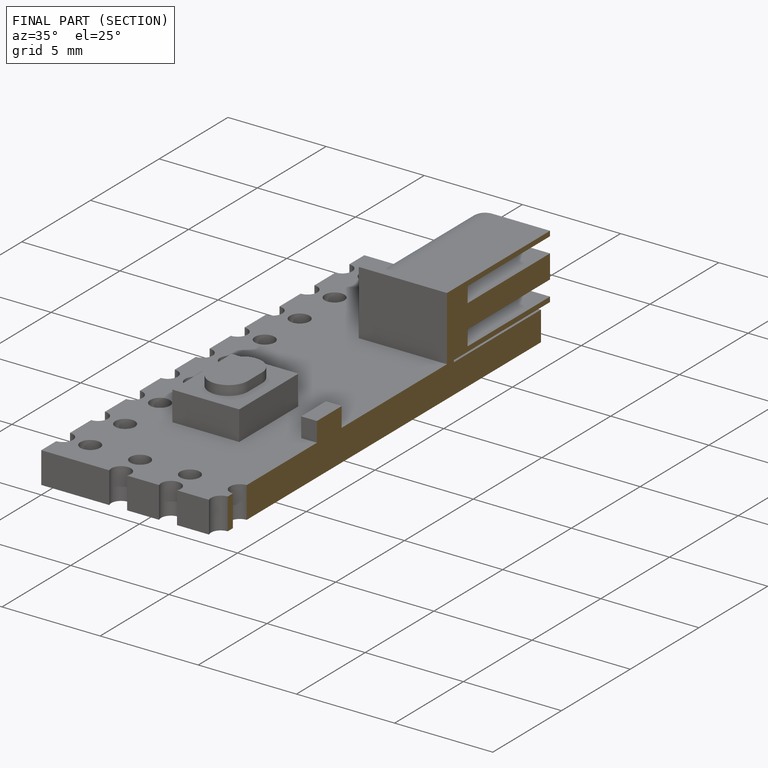
[diagram: finished part — half-section view (interior)]
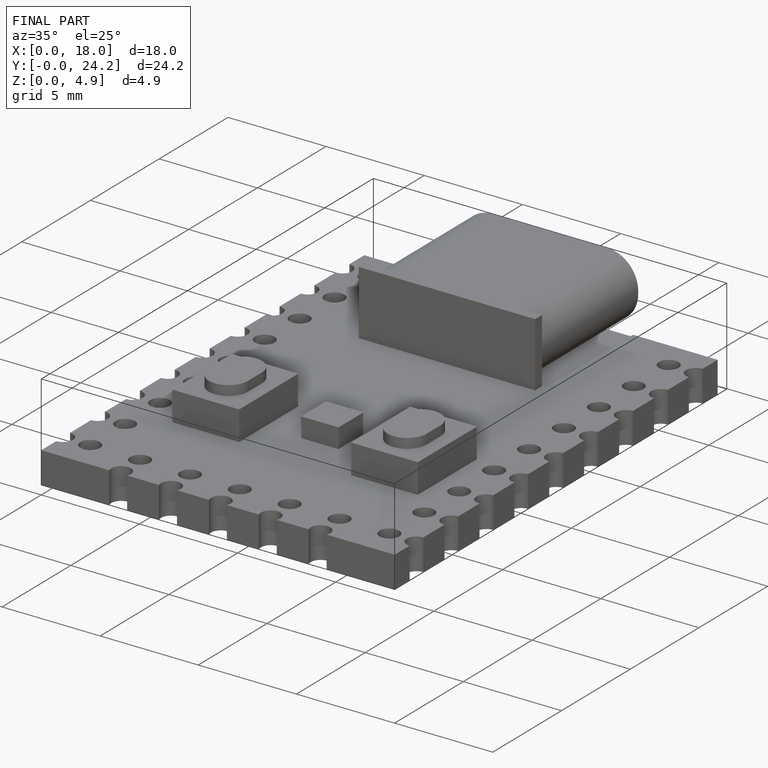
[diagram: finished part — iso view with bounding-box wireframe]
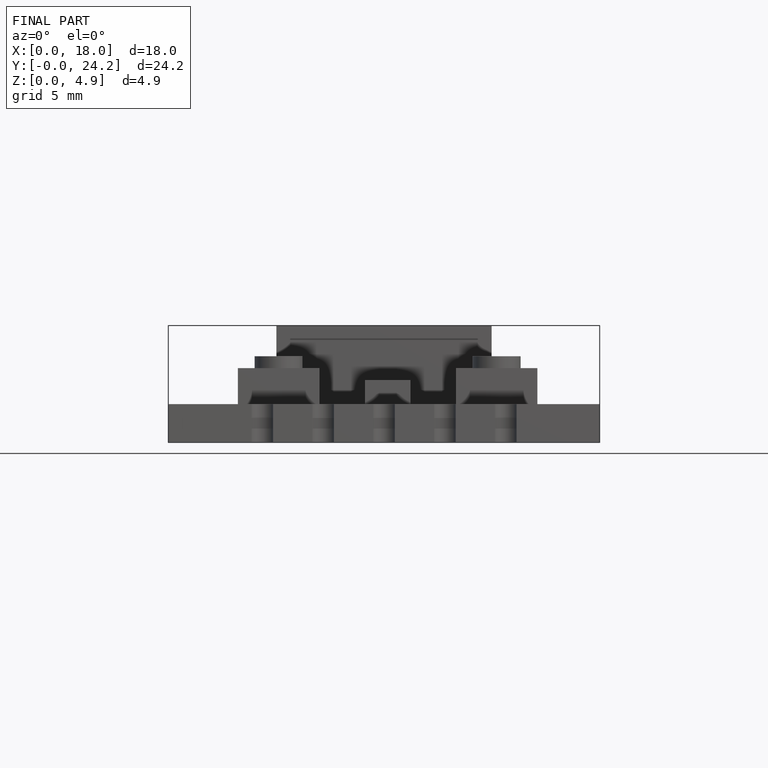
[diagram: finished part — front view with bounding-box wireframe]
